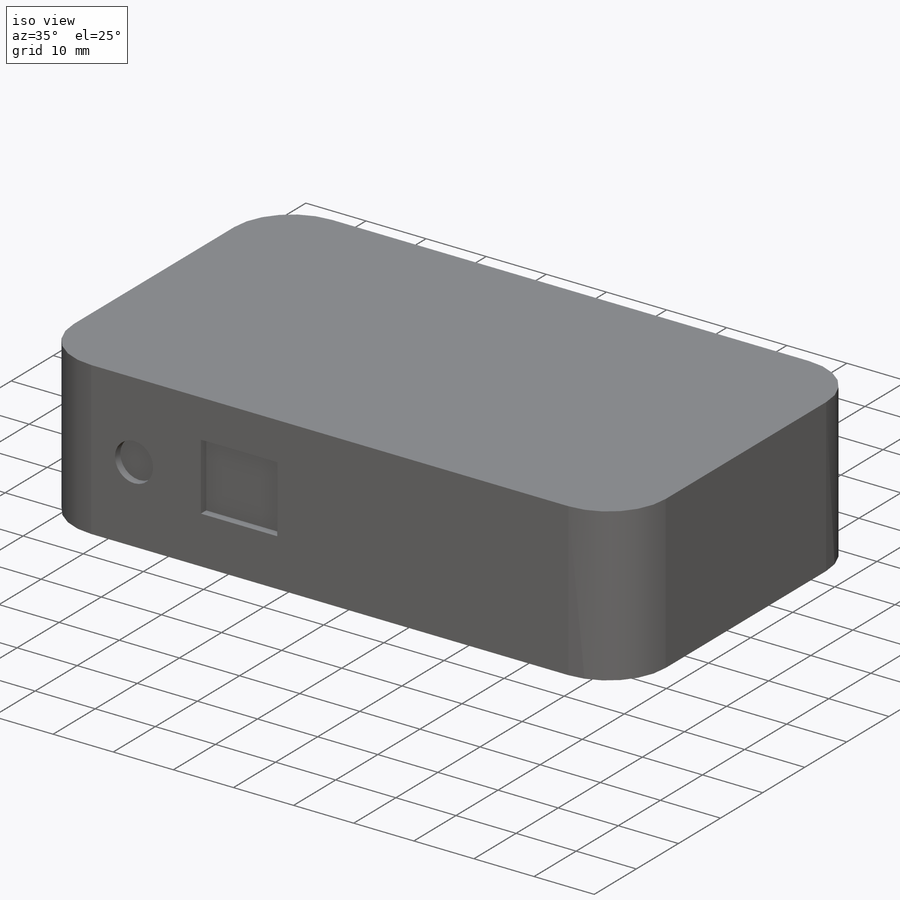
[diagram: iso view]
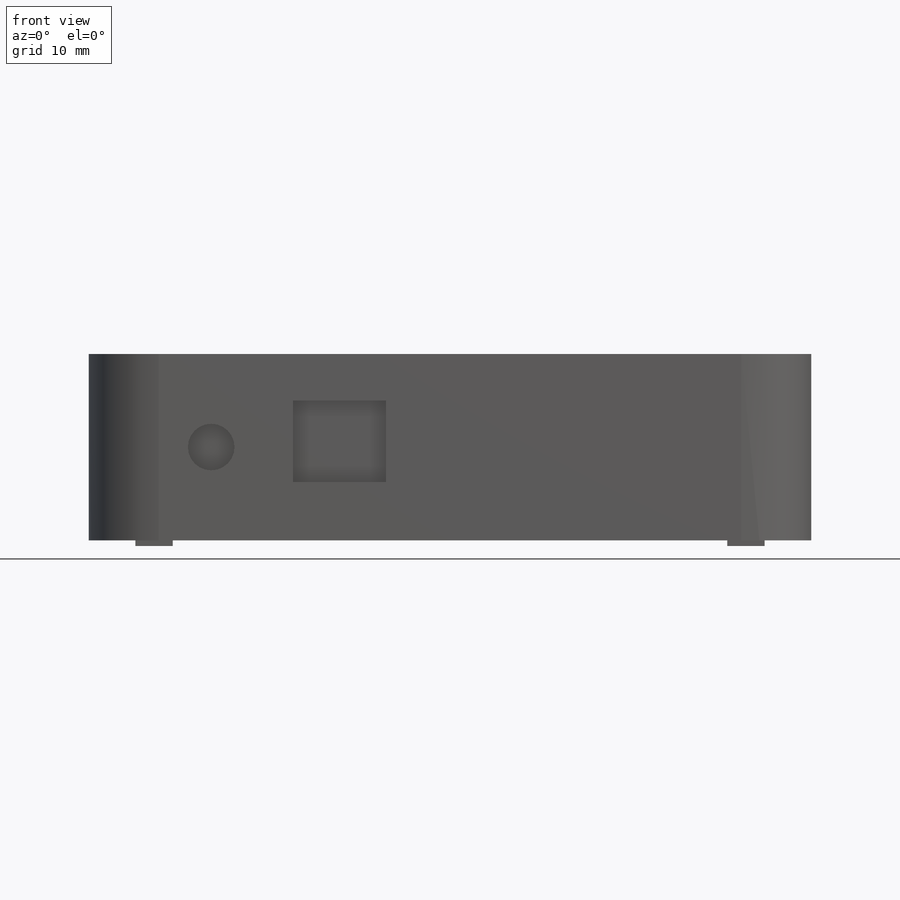
[diagram: front view]
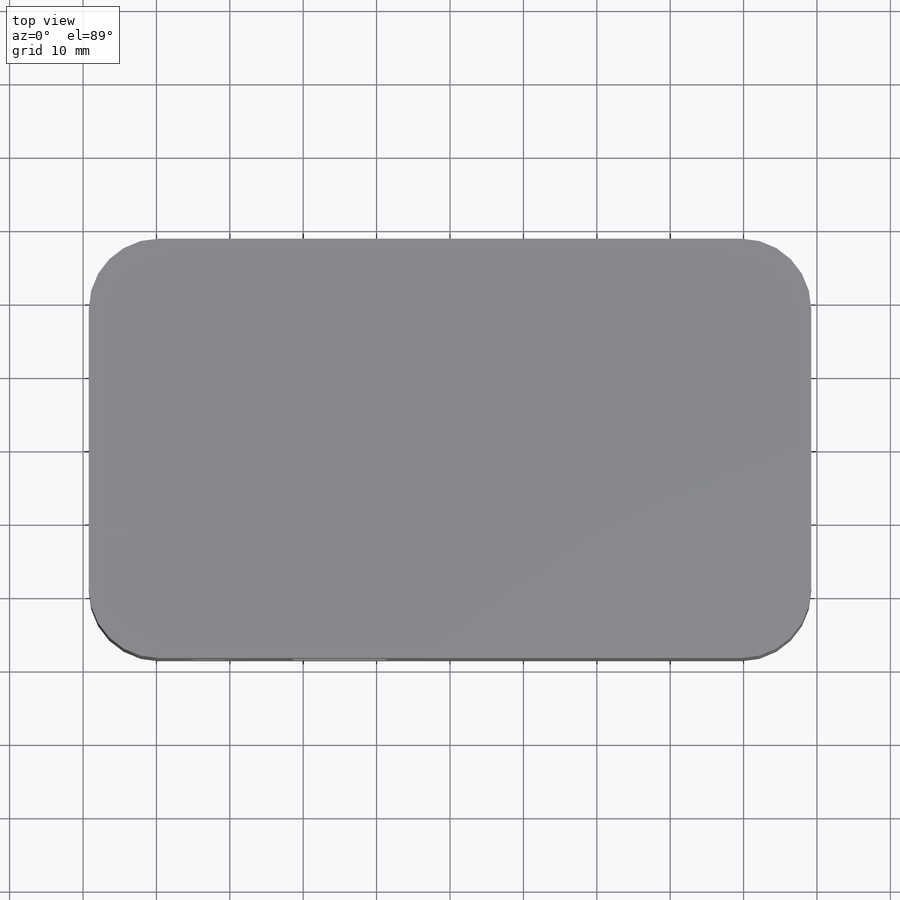
[diagram: top view]
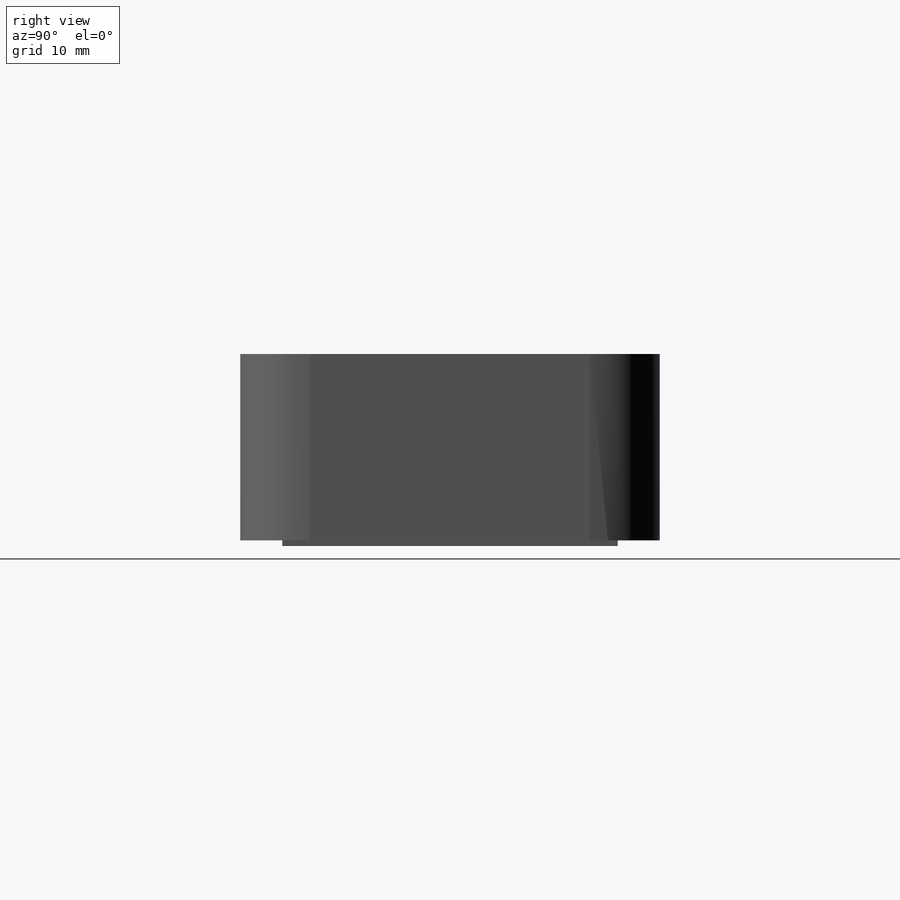
[diagram: right view]
SOLIDWORKS PART (.sldprt)
format: sldprt  version: not decoded by parser v0  size: 245,248 bytes
history: native  units: mm
features: sketch x4, extrude x2, cut_extrude x2, material x1, fillet x1 (+12 scaffold rows collapsed)
feature tree (22):
  scaffold x12  (default folders/planes/origin — collapsed)
  material  "Delrin 2700 NC010, Low Viscosity Acetal Copolymer (SS)"
  sketch  "Sketch1"  dims[D1=57.15mm D2=98.425mm]
  extrude  "Boss-Extrude1"  Depth=25.4mm
  sketch  "Sketch2"  dims[D1=45.72mm D2=5.08mm D3=85.725mm]
  extrude  "Boss-Extrude2"  Depth=0.762mm
  fillet  "Fillet1"  Radius=9.525mm
  sketch  "Sketch3"  dims[D1=~7.14375mm D2=76.2mm D3=3.175mm D4=14.2875mm]
  cut_extrude  "Cut-Extrude1"  Depth=1.27mm
  sketch  "Sketch4"  dims[D5=6.35mm D1=12.7mm D2=11.1125mm D3=6.35mm D4=~27.78125mm D6=12.7mm D7=11.1125mm]
  cut_extrude  "Cut-Extrude2"  Depth=1.27mm
decode coverage: 9 of 9 modeling features carry decoded parameters
note: ~ marks probable driven/reference dimensions
note: suppression state not decoded; provenance and decode notes live in map.json
